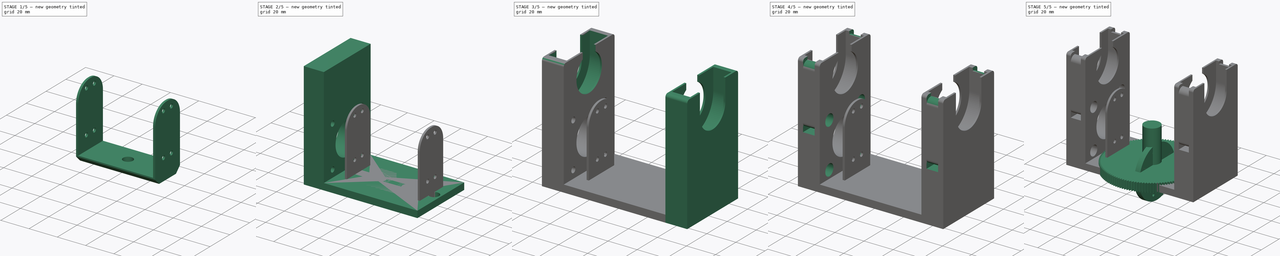
[diagram: build sequence overview — one tinted view per stage of 5, left to right]
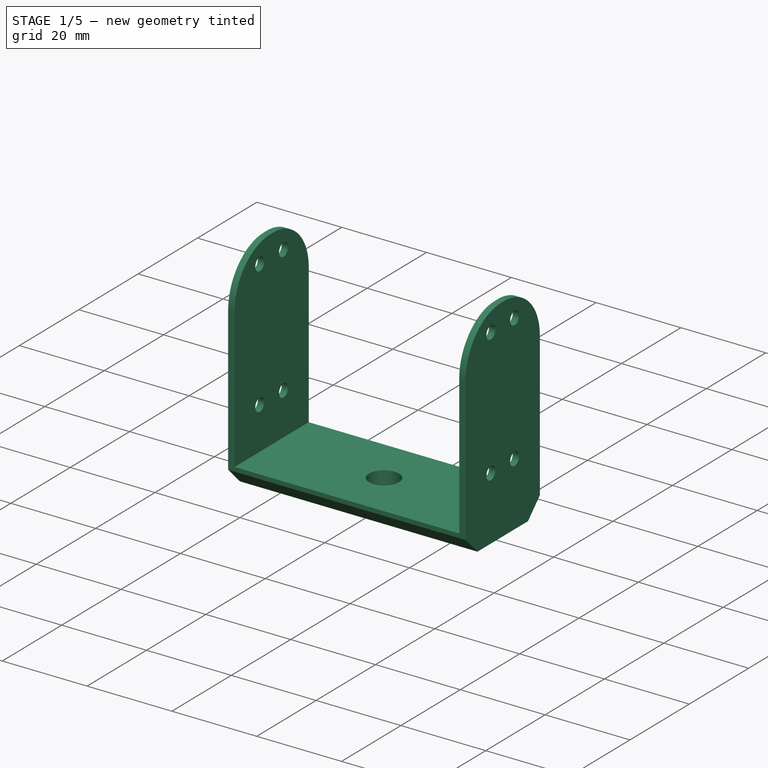
[diagram: stage 1 of 5 — iso view after this stage's code; geometry added in this stage tinted green]
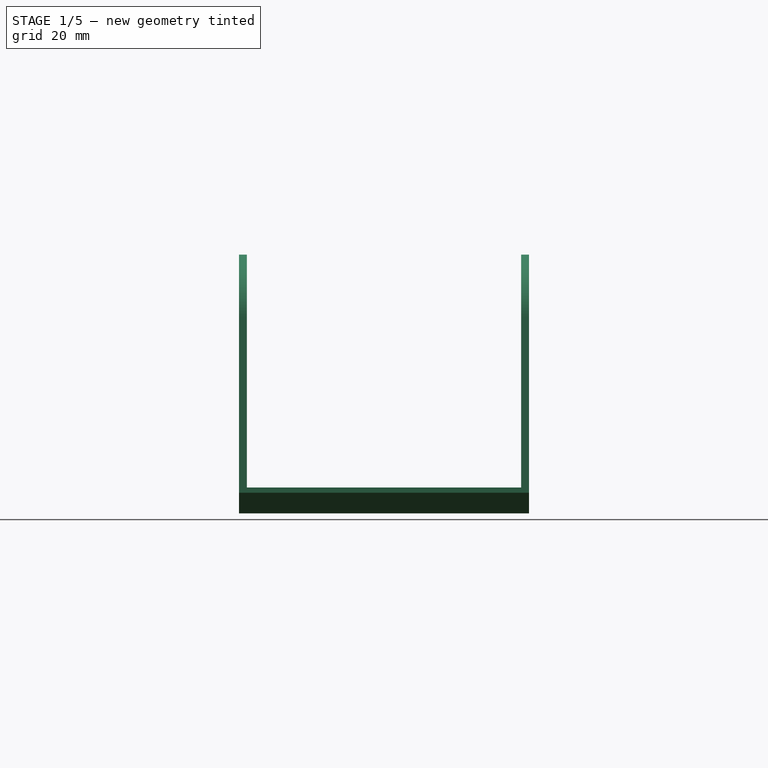
[diagram: stage 1 of 5 — front view after this stage's code; geometry added in this stage tinted green]
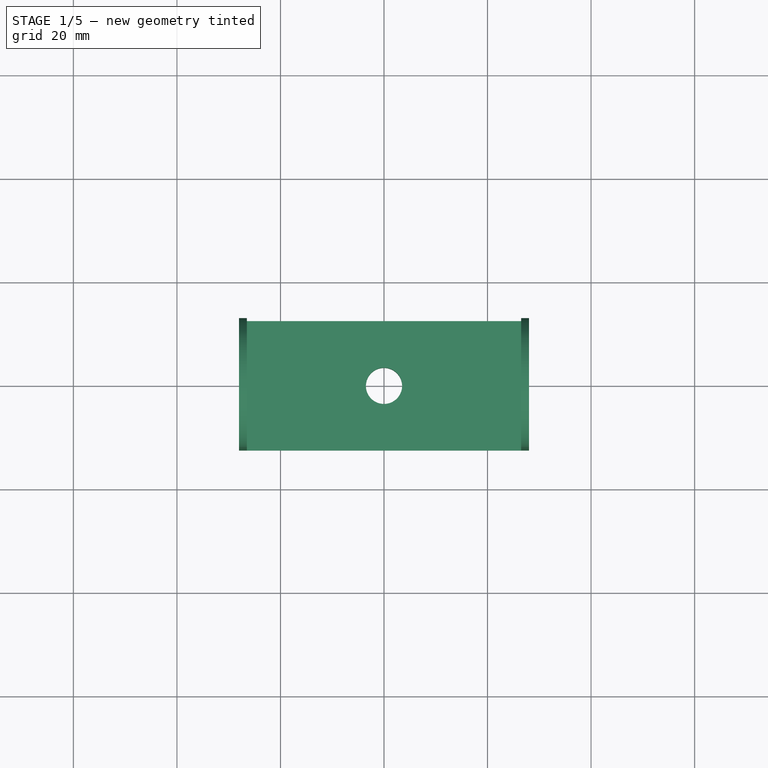
[diagram: stage 1 of 5 — top view after this stage's code; geometry added in this stage tinted green]
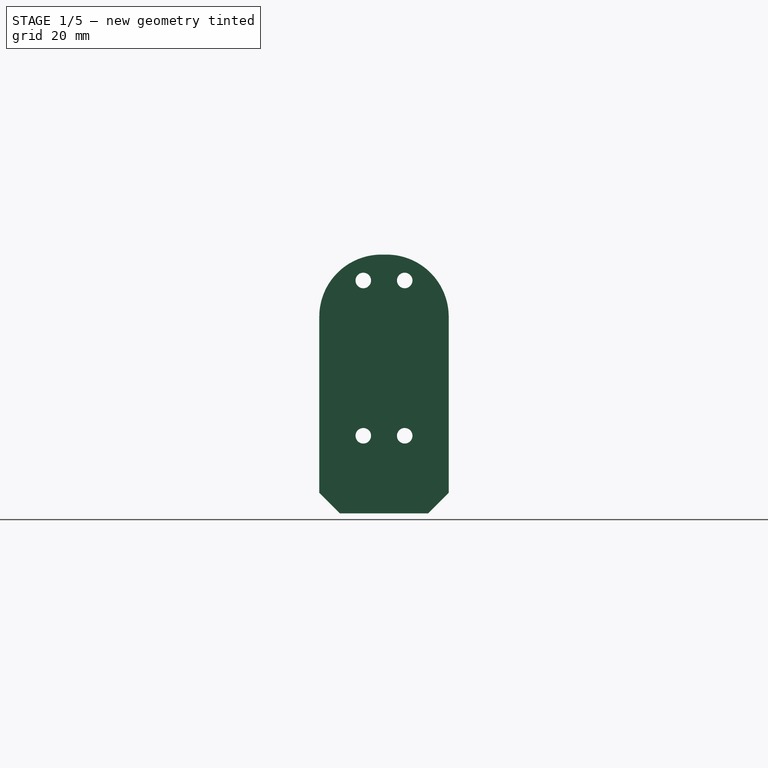
[diagram: stage 1 of 5 — right view after this stage's code; geometry added in this stage tinted green]
FCSTD DOCUMENT  (FreeCAD 0.20R29603 (Git))
Label: tilt_struct
License: All rights reserved
LicenseURL: http://en.wikipedia.org/wiki/All_rights_reserved
objects: Sketcher::SketchObject×21, PartDesign::Pocket×12, PartDesign::Pad×9, PartDesign::Body×5, PartDesign::Mirrored×4, PartDesign::Fillet×4, Part::Part2DObjectPython×2, PartDesign::Chamfer×2, PartDesign::Hole×1, PartDesign::Groove×1
note: 90 computed .brp shape members not serialized (recipe doc carries the construction recipe); baked Part::Feature solids carry a one-line shape summary decoded from their .brp

FEATURE [Sketcher::SketchObject] Sketch008
  FullyConstrained = true
  MapMode = 5
  Support = -> [XY_Plane001]
  sketch-geometry (5):
    g0: LineSegment StartX=-26.5 StartY=12.5 StartZ=0 EndX=-26.5 EndY=-12.5 EndZ=0
    g1: LineSegment StartX=-26.5 StartY=-12.5 StartZ=0 EndX=26.5 EndY=-12.5 EndZ=0
    g2: LineSegment StartX=26.5 StartY=-12.5 StartZ=0 EndX=26.5 EndY=12.5 EndZ=0
    g3: LineSegment StartX=26.5 StartY=12.5 StartZ=0 EndX=-26.5 EndY=12.5 EndZ=0
    g4: GeomPoint X=0 Y=0 Z=0
  constraints (12):
    c: Coincident(g0,g1)
    c: Coincident(g1,g2)
    c: Coincident(g2,g3)
    c: Coincident(g3,g0)
    c: Horizontal(g1)
    c: Horizontal(g3)
    c: Vertical(g0)
    c: Vertical(g2)
    c: Symmetric(g1,g0,g4)
    c: Coincident(g4,g-1)
    c: DistanceX(g3,g3) = 53
    c: DistanceY(g2,g2) = 25
FEATURE [PartDesign::Pad] Pad002
  Direction = (0,0,1)
  Length = 5
  Length2 = 10
  Profile = -> Sketch008
  ReferenceAxis = -> Sketch008 [N_Axis]
  Type = 0
FEATURE [Sketcher::SketchObject] Sketch009
  FullyConstrained = true
  MapMode = 5
  Placement = pos=(-26.5,0,0) rot=(0.57735,-0.57735,-0.57735;2.0944rad)
  Support = -> [Pad002]
  sketch-geometry (5):
    g0: LineSegment StartX=-12.5 StartY=50 StartZ=0 EndX=-12.5 EndY=0 EndZ=0
    g1: LineSegment StartX=-12.5 StartY=0 StartZ=0 EndX=12.5 EndY=0 EndZ=0
    g2: LineSegment StartX=12.5 StartY=0 StartZ=0 EndX=12.5 EndY=50 EndZ=0
    g3: LineSegment StartX=12.5 StartY=50 StartZ=0 EndX=-12.5 EndY=50 EndZ=0
    g4: GeomPoint X=0 Y=25 Z=0
  constraints (13):
    c: Coincident(g0,g1)
    c: Coincident(g1,g2)
    c: Coincident(g2,g3)
    c: Coincident(g3,g0)
    c: Horizontal(g1)
    c: Horizontal(g3)
    c: Vertical(g0)
    c: Vertical(g2)
    c: Symmetric(g1,g0,g4)
    c: PointOnObject(g4,g-2)
    c: DistanceX(g1,g1) = 25
    c: DistanceY(g2,g2) = 50
    c: PointOnObject(g-1,g1)
FEATURE [PartDesign::Pad] Pad003  label="Pad003-sideWall"
  BaseFeature = -> Pad002
  Direction = (-1,0,0)
  Length = 1.5
  Length2 = 10
  Profile = -> Sketch009
  ReferenceAxis = -> Sketch009 [N_Axis]
  Type = 0
FEATURE [Sketcher::SketchObject] Sketch018
  FullyConstrained = true
  MapMode = 5
  Placement = pos=(-28,0,0) rot=(0.57735,-0.57735,-0.57735;2.0944rad)
  Support = -> [Pad003]
  sketch-geometry (9):
    g0: LineSegment StartX=-4 StartY=45 StartZ=0 EndX=-4 EndY=15 EndZ=0
    g1: LineSegment StartX=-4 StartY=15 StartZ=0 EndX=4 EndY=15 EndZ=0
    g2: LineSegment StartX=4 StartY=15 StartZ=0 EndX=4 EndY=45 EndZ=0
    g3: LineSegment StartX=4 StartY=45 StartZ=0 EndX=-4 EndY=45 EndZ=0
    g4: GeomPoint X=0 Y=30 Z=0
    g5: Circle CenterX=-4 CenterY=45 CenterZ=0 NormalX=0 NormalY=0 NormalZ=1 AngleXU=0 Radius=1.5
    g6: Circle CenterX=4 CenterY=45 CenterZ=0 NormalX=0 NormalY=0 NormalZ=1 AngleXU=0 Radius=1.5
    g7: Circle CenterX=4 CenterY=15 CenterZ=0 NormalX=0 NormalY=0 NormalZ=1 AngleXU=0 Radius=1.5
    g8: Circle CenterX=-4 CenterY=15 CenterZ=0 NormalX=0 NormalY=0 NormalZ=1 AngleXU=0 Radius=1.5
  constraints (21):
    c: Coincident(g0,g1)
    c: Coincident(g1,g2)
    c: Coincident(g2,g3)
    c: Coincident(g3,g0)
    c: Horizontal(g1)
    c: Horizontal(g3)
    c: Vertical(g0)
    c: Vertical(g2)
    c: Symmetric(g1,g0,g4)
    c: PointOnObject(g4,g-2)
    c: DistanceX(g3,g3) = 8
    c: DistanceY(g-1,g4) = 30
    c: Coincident(g5,g0)
    c: Coincident(g6,g2)
    c: Coincident(g7,g1)
    c: Coincident(g8,g0)
    c: Equal(g5,g6)
    c: Equal(g6,g7)
    c: Equal(g7,g8)
    c: Diameter(g6) = 3
    c: DistanceY(g2,g2) = 30
FEATURE [PartDesign::Pocket] Pocket005
  BaseFeature = -> Pad003
  Direction = (1,0,0)
  Length = 5
  Length2 = 5
  Profile = -> Sketch018
  ReferenceAxis = -> Sketch018 [N_Axis]
  Type = 0
FEATURE [Sketcher::SketchObject] Sketch020
  FullyConstrained = true
  MapMode = 5
  Placement = pos=(0,0,6.5) rot=(0,0,1;0rad)
  Support = -> [Pocket006]
  sketch-geometry (1):
    g0: Circle CenterX=0 CenterY=0 CenterZ=0 NormalX=0 NormalY=0 NormalZ=1 AngleXU=0 Radius=6.25
  constraints (2):
    c: Coincident(g0,g-1)
    c: Diameter(g0) = 12.5
FEATURE [PartDesign::Fillet] Fillet
  Base = -> Pocket005 [Edge6,Edge18]
  BaseFeature = -> Pocket005
  Radius = 12
  SupportTransform = false
  UseAllEdges = false
FEATURE [PartDesign::Mirrored] Mirrored003
  BaseFeature = -> Fillet
  MirrorPlane = -> YZ_Plane001
  Originals = -> [Pad003,Pocket005,Fillet]
FEATURE [Sketcher::SketchObject] Sketch022
  FullyConstrained = true
  MapMode = 5
  Placement = pos=(0,0,5) rot=(0,0,1;0rad)
  Support = -> [Mirrored003]
  sketch-geometry (1):
    g0: Circle CenterX=0 CenterY=0 CenterZ=0 NormalX=0 NormalY=0 NormalZ=1 AngleXU=0 Radius=3.5
  constraints (2):
    c: Coincident(g0,g-1)
    c: Diameter(g0) = 7
FEATURE [PartDesign::Pocket] Pocket007
  BaseFeature = -> Mirrored003
  Direction = (0,0,-1)
  Length = 6
  Length2 = 5
  Profile = -> Sketch022
  ReferenceAxis = -> Sketch022 [N_Axis]
  Type = 0
FEATURE [PartDesign::Body] Body
  Group = -> [Sketch,Pad,Sketch001,Hole,Mirrored,Sketch002,Pad001,Sketch013,Pocket,Sketch014,Pocket002,Sketch015,Pocket003,Sketch016,Groove,Sketch017,Pocket004,Sketch026,Pocket009,Fillet001,Mirrored004,Sketch027,Pocket010,Sketch028,Pocket011,Fillet002,Sketch029,Pocket012,Fillet003,Mirrored005]
  Origin = -> Origin
  Tip = -> Mirrored005
FEATURE [PartDesign::Chamfer] Chamfer
  Angle = 45
  Base = -> Pocket007 [Edge5,Edge28]
  BaseFeature = -> Pocket007
  ChamferType = 0
  FlipDirection = false
  Size = 4
  Size2 = 1
  SupportTransform = false
  UseAllEdges = false
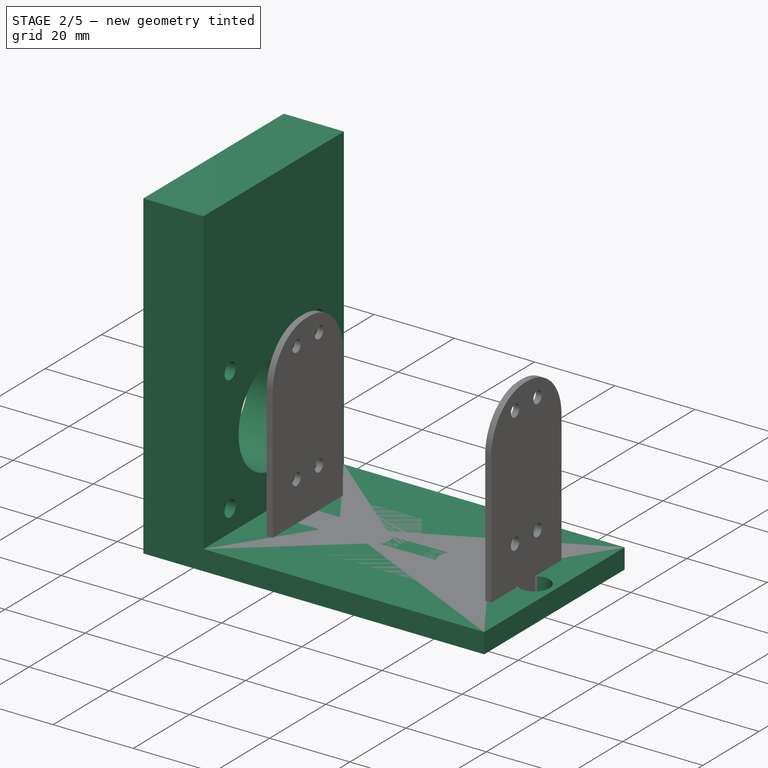
[diagram: stage 2 of 5 — iso view after this stage's code; geometry added in this stage tinted green]
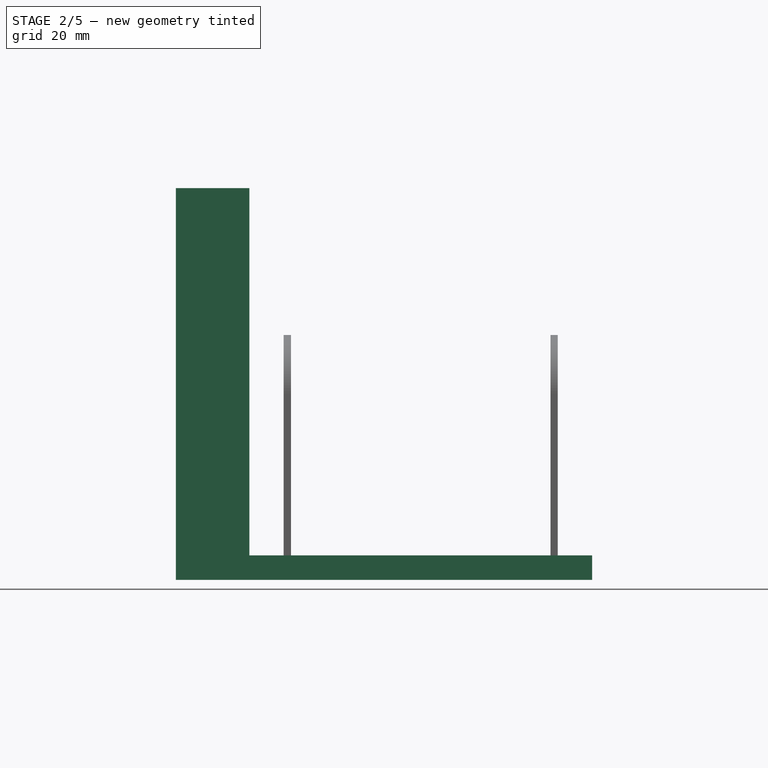
[diagram: stage 2 of 5 — front view after this stage's code; geometry added in this stage tinted green]
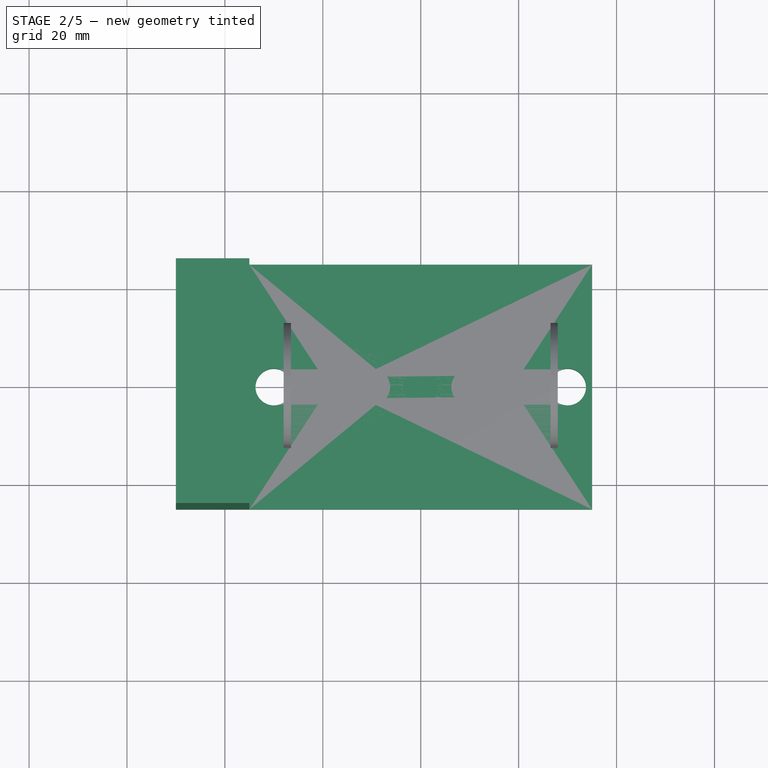
[diagram: stage 2 of 5 — top view after this stage's code; geometry added in this stage tinted green]
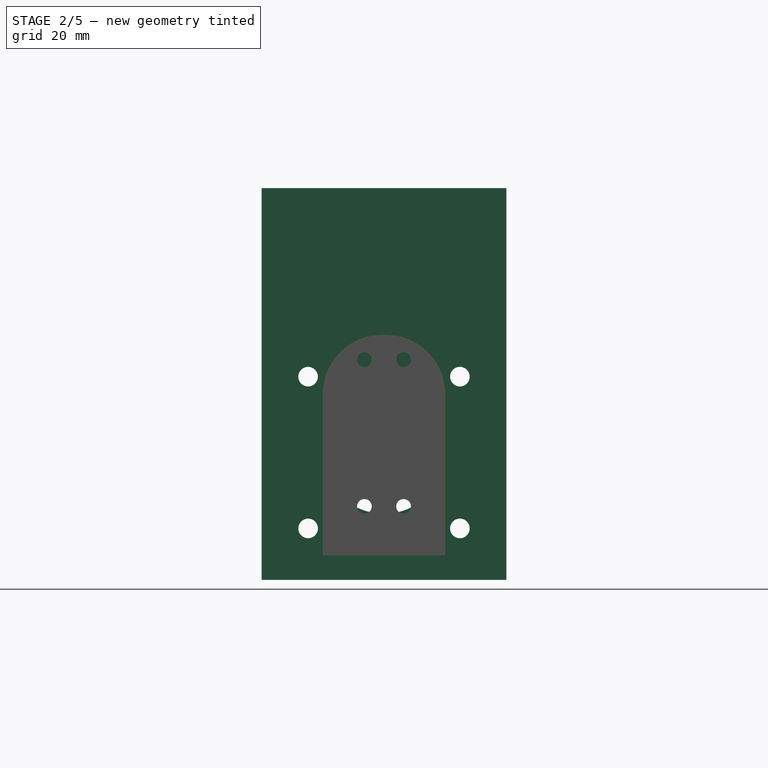
[diagram: stage 2 of 5 — right view after this stage's code; geometry added in this stage tinted green]
FEATURE [Sketcher::SketchObject] Sketch
  FullyConstrained = true
  MapMode = 5
  Support = -> [XY_Plane]
  sketch-geometry (5):
    g0: LineSegment StartX=-35 StartY=25 StartZ=0 EndX=-35 EndY=-25 EndZ=0
    g1: LineSegment StartX=-35 StartY=-25 StartZ=0 EndX=35 EndY=-25 EndZ=0
    g2: LineSegment StartX=35 StartY=-25 StartZ=0 EndX=35 EndY=25 EndZ=0
    g3: LineSegment StartX=35 StartY=25 StartZ=0 EndX=-35 EndY=25 EndZ=0
    g4: GeomPoint X=0 Y=0 Z=0
  constraints (12):
    c: Coincident(g0,g1)
    c: Coincident(g1,g2)
    c: Coincident(g2,g3)
    c: Coincident(g3,g0)
    c: Horizontal(g1)
    c: Horizontal(g3)
    c: Vertical(g0)
    c: Vertical(g2)
    c: Symmetric(g1,g0,g4)
    c: Coincident(g4,g-1)
    c: DistanceX(g3,g3) = 70
    c: DistanceY(g2,g2) = 50
FEATURE [PartDesign::Pad] Pad  label="Pad-base-connect"
  Direction = (0,0,1)
  Length = 5
  Length2 = 10
  Profile = -> Sketch
  ReferenceAxis = -> Sketch [N_Axis]
  Type = 0
FEATURE [Sketcher::SketchObject] Sketch001
  FullyConstrained = true
  MapMode = 5
  Placement = pos=(0,0,5) rot=(0,0,1;0rad)
  Support = -> [Pad]
  sketch-geometry (3):
    g0: Circle CenterX=-30 CenterY=0 CenterZ=0 NormalX=0 NormalY=0 NormalZ=1 AngleXU=0 Radius=3.75
    g1: Circle CenterX=-20 CenterY=0 CenterZ=0 NormalX=0 NormalY=0 NormalZ=1 AngleXU=0 Radius=3.75
    g2: Circle CenterX=-10 CenterY=0 CenterZ=0 NormalX=0 NormalY=0 NormalZ=1 AngleXU=0 Radius=3.75
  constraints (9):
    c: DistanceX(g0,g-1) = 30
    c: PointOnObject(g0,g-1)
    c: DistanceX(g0,g1) = 10
    c: PointOnObject(g1,g-1)
    c: Equal(g1,g0)
    c: Diameter(g0) = 7.5
    c: PointOnObject(g2,g-1)
    c: DistanceX(g1,g2) = 10
    c: Equal(g2,g0)
FEATURE [PartDesign::Hole] Hole  label="Hole-base-connect"
  BaseFeature = -> Pad
  CustomThreadClearance = 0
  Depth = 5
  DepthType = 0
  Diameter = 7.5
  DrillForDepth = false
  DrillPoint = 1
  DrillPointAngle = 118
  HoleCutCountersinkAngle = 90
  HoleCutCustomValues = false
  HoleCutDepth = 0
  HoleCutDiameter = 6.1
  HoleCutType = 0
  ModelThread = false
  Profile = -> Sketch001
  Tapered = false
  TaperedAngle = 90
  ThreadClass = 0
  ThreadDepth = 5
  ThreadDepthType = 0
  ThreadDirection = 0
  ThreadFit = 0
  ThreadSize = 0
  ThreadType = 0
  Threaded = false
  UseCustomThreadClearance = false
FEATURE [PartDesign::Mirrored] Mirrored  label="Mirrored-base-connect"
  BaseFeature = -> Hole
  MirrorPlane = -> Sketch001 [V_Axis]
  Originals = -> [Hole]
FEATURE [Sketcher::SketchObject] Sketch002
  FullyConstrained = true
  MapMode = 5
  Placement = pos=(-35,0,0) rot=(0.57735,-0.57735,-0.57735;2.0944rad)
  Support = -> [Mirrored]
  sketch-geometry (6):
    g0: LineSegment StartX=-25 StartY=80 StartZ=0 EndX=-25 EndY=0 EndZ=0
    g1: LineSegment StartX=-25 StartY=0 StartZ=0 EndX=25 EndY=0 EndZ=0
    g2: LineSegment StartX=25 StartY=0 StartZ=0 EndX=25 EndY=80 EndZ=0
    g3: LineSegment StartX=25 StartY=80 StartZ=0 EndX=-25 EndY=80 EndZ=0
    g4: GeomPoint X=0 Y=40 Z=0
    g5: GeomPoint X=0 Y=0 Z=0
  constraints (14):
    c: Coincident(g0,g1)
    c: Coincident(g1,g2)
    c: Coincident(g2,g3)
    c: Coincident(g3,g0)
    c: Horizontal(g1)
    c: Horizontal(g3)
    c: Vertical(g0)
    c: Vertical(g2)
    c: Symmetric(g1,g0,g4)
    c: PointOnObject(g4,g-2)
    c: DistanceX(g1,g1) = 50
    c: PointOnObject(g5,g1)
    c: Coincident(g5,g-1)
    c: DistanceY(g2,g2) = 80
FEATURE [PartDesign::Pad] Pad001  label="Pad001-side"
  BaseFeature = -> Mirrored
  Direction = (-1,0,0)
  Length = 15
  Length2 = 10
  Profile = -> Sketch002
  ReferenceAxis = -> Sketch002 [N_Axis]
  Type = 0
FEATURE [Sketcher::SketchObject] Sketch013
  FullyConstrained = true
  MapMode = 5
  Placement = pos=(-50,0,0) rot=(0.57735,-0.57735,-0.57735;2.0944rad)
  Support = -> [Pad001]
  sketch-geometry (10):
    g0: LineSegment StartX=-15.5 StartY=41.5 StartZ=0 EndX=-15.5 EndY=10.5 EndZ=0
    g1: LineSegment StartX=-15.5 StartY=10.5 StartZ=0 EndX=15.5 EndY=10.5 EndZ=0
    g2: LineSegment StartX=15.5 StartY=10.5 StartZ=0 EndX=15.5 EndY=41.5 EndZ=0
    g3: LineSegment StartX=15.5 StartY=41.5 StartZ=0 EndX=-15.5 EndY=41.5 EndZ=0
    g4: GeomPoint X=0 Y=26 Z=0
    g5: Circle CenterX=-15.5 CenterY=41.5 CenterZ=0 NormalX=0 NormalY=0 NormalZ=1 AngleXU=0 Radius=2
    g6: Circle CenterX=15.5 CenterY=41.5 CenterZ=0 NormalX=0 NormalY=0 NormalZ=1 AngleXU=0 Radius=2
    g7: Circle CenterX=15.5 CenterY=10.5 CenterZ=0 NormalX=0 NormalY=0 NormalZ=1 AngleXU=0 Radius=2
    g8: Circle CenterX=-15.5 CenterY=10.5 CenterZ=0 NormalX=0 NormalY=0 NormalZ=1 AngleXU=0 Radius=2
    g9: Circle CenterX=0 CenterY=26 CenterZ=0 NormalX=0 NormalY=0 NormalZ=1 AngleXU=0 Radius=12.5
  constraints (23):
    c: Coincident(g0,g1)
    c: Coincident(g1,g2)
    c: Coincident(g2,g3)
    c: Coincident(g3,g0)
    c: Horizontal(g1)
    c: Horizontal(g3)
    c: Vertical(g0)
    c: Vertical(g2)
    c: Symmetric(g1,g0,g4)
    c: PointOnObject(g4,g-2)
    c: Equal(g1,g2)
    c: DistanceX(g1,g1) = 31
    c: DistanceY(g-1,g4) = 26
    c: Coincident(g6,g2)
    c: Coincident(g7,g1)
    c: Coincident(g8,g0)
    c: Equal(g5,g6)
    c: Equal(g6,g7)
    c: Equal(g7,g8)
    c: Diameter(g6) = 4
    c: Coincident(g9,g4)
    c: Diameter(g9) = 25
    c: Coincident(g5,g0)
FEATURE [PartDesign::Pocket] Pocket  label="Pocket-motor-shaft"
  BaseFeature = -> Pad001
  Direction = (1,0,0)
  Length = 25
  Length2 = 5
  Profile = -> Sketch013
  ReferenceAxis = -> Sketch013 [N_Axis]
  Type = 0
FEATURE [PartDesign::Chamfer] Chamfer001
  Angle = 45
  Base = -> Chamfer [Edge33,Edge54]
  BaseFeature = -> Chamfer
  ChamferType = 0
  FlipDirection = false
  Size = 3
  Size2 = 1
  SupportTransform = false
  UseAllEdges = false
FEATURE [PartDesign::Body] Body001  label="Body001-camera-mount"
  Group = -> [Sketch008,Pad002,Sketch009,Pad003,Sketch018,Pocket005,Fillet,Mirrored003,Sketch022,Pocket007,Chamfer,Chamfer001]
  Origin = -> Origin001
  Placement = pos=(0,0,35) rot=(0,0,1;0rad)
  Tip = -> Chamfer001
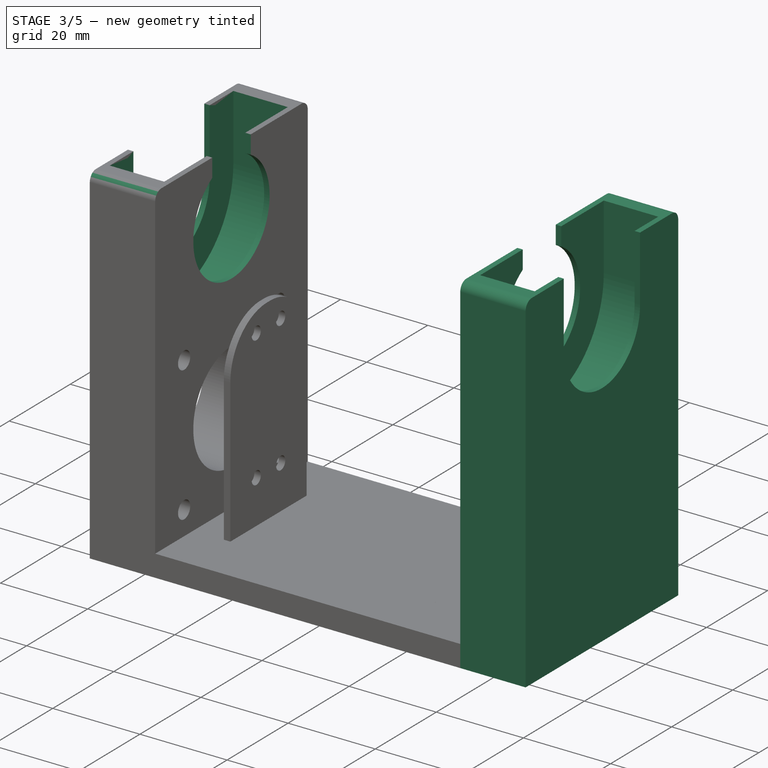
[diagram: stage 3 of 5 — iso view after this stage's code; geometry added in this stage tinted green]
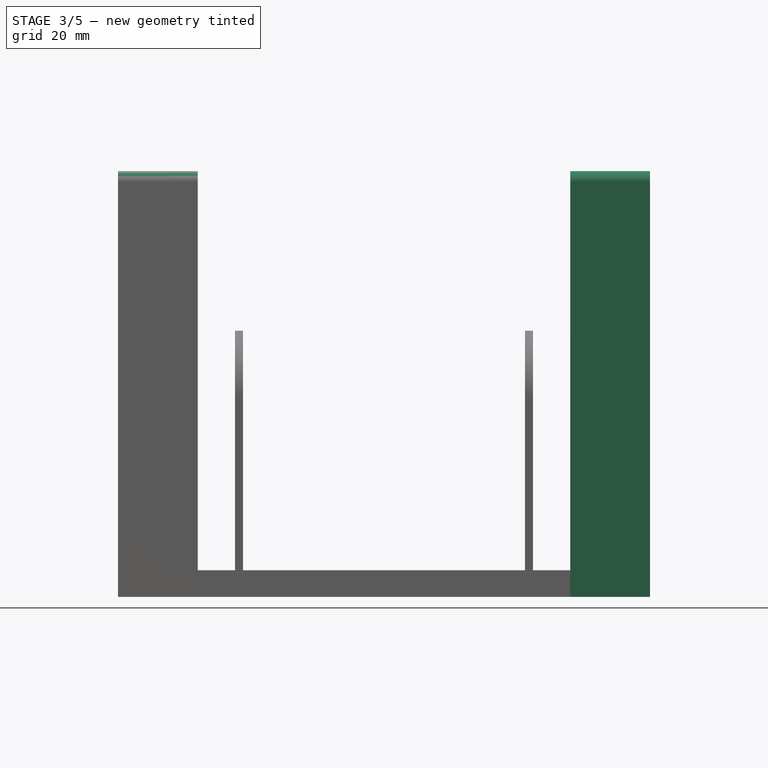
[diagram: stage 3 of 5 — front view after this stage's code; geometry added in this stage tinted green]
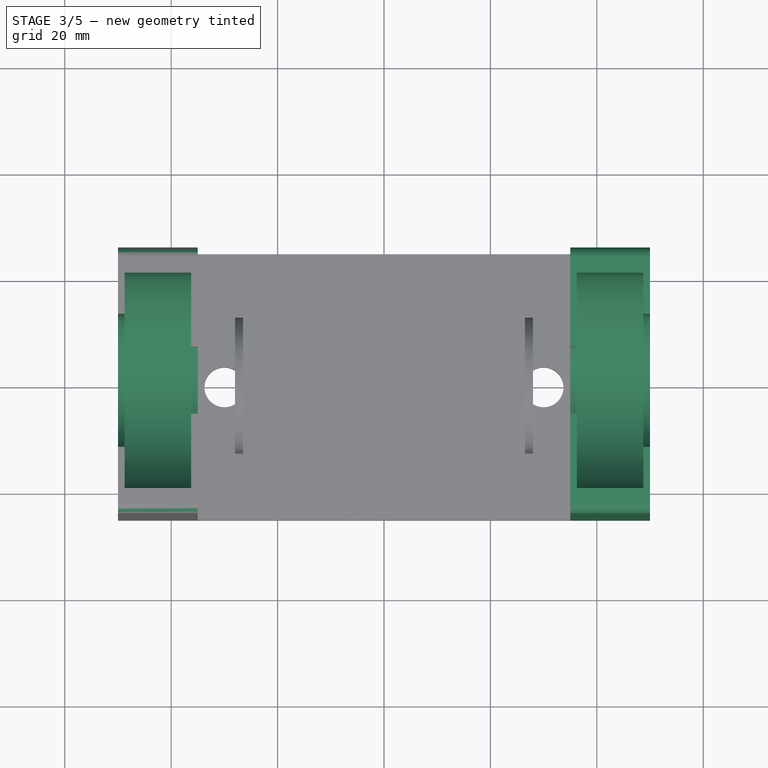
[diagram: stage 3 of 5 — top view after this stage's code; geometry added in this stage tinted green]
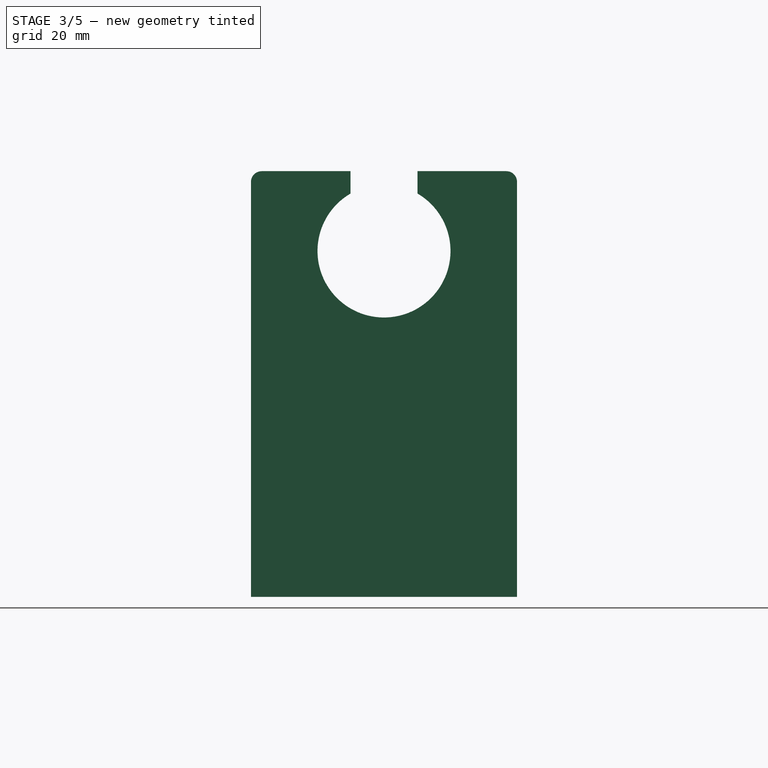
[diagram: stage 3 of 5 — right view after this stage's code; geometry added in this stage tinted green]
FEATURE [Sketcher::SketchObject] Sketch014
  FullyConstrained = true
  MapMode = 5
  Placement = pos=(0,0,80) rot=(0,0,1;0rad)
  Support = -> [Pocket]
  sketch-geometry (5):
    g0: LineSegment StartX=-48.75 StartY=20.25 StartZ=0 EndX=-48.75 EndY=-20.25 EndZ=0
    g1: LineSegment StartX=-48.75 StartY=-20.25 StartZ=0 EndX=-36.25 EndY=-20.25 EndZ=0
    g2: LineSegment StartX=-36.25 StartY=-20.25 StartZ=0 EndX=-36.25 EndY=20.25 EndZ=0
    g3: LineSegment StartX=-36.25 StartY=20.25 StartZ=0 EndX=-48.75 EndY=20.25 EndZ=0
    g4: GeomPoint X=-42.5 Y=0 Z=0
  constraints (13):
    c: Coincident(g0,g1)
    c: Coincident(g1,g2)
    c: Coincident(g2,g3)
    c: Coincident(g3,g0)
    c: Horizontal(g1)
    c: Horizontal(g3)
    c: Vertical(g0)
    c: Vertical(g2)
    c: Symmetric(g1,g0,g4)
    c: PointOnObject(g4,g-1)
    c: DistanceX(g3,g3) = 12.5
    c: DistanceY(g2,g2) = 40.5
    c: DistanceX(g4,g-1) = 42.5
FEATURE [PartDesign::Pocket] Pocket002  label="Pocket002-bearing-groove"
  BaseFeature = -> Pocket
  Direction = (0,0,-1)
  Length = 15
  Length2 = 5
  Profile = -> Sketch014
  ReferenceAxis = -> Sketch014 [N_Axis]
  Type = 0
FEATURE [Sketcher::SketchObject] Sketch015
  FullyConstrained = true
  MapMode = 5
  Placement = pos=(-50,0,0) rot=(0.57735,-0.57735,-0.57735;2.0944rad)
  Support = -> [Pocket002]
  sketch-geometry (1):
    g0: Circle CenterX=0 CenterY=65 CenterZ=0 NormalX=0 NormalY=0 NormalZ=1 AngleXU=0 Radius=12.5
  constraints (3):
    c: PointOnObject(g0,g-2)
    c: Diameter(g0) = 25
    c: DistanceY(g-1,g0) = 65
FEATURE [PartDesign::Pocket] Pocket003  label="Pocket003-bearing"
  BaseFeature = -> Pocket002
  Direction = (1,0,0)
  Length = 23
  Length2 = 5
  Profile = -> Sketch015
  ReferenceAxis = -> Sketch015 [N_Axis]
  Type = 0
FEATURE [Sketcher::SketchObject] Sketch016
  FullyConstrained = true
  MapMode = 5
  Placement = pos=(0,0,65) rot=(0,0,1;0rad)
  Support = -> [Pocket003]
  sketch-geometry (5):
    g0: LineSegment StartX=-48.75 StartY=20.25 StartZ=0 EndX=-48.75 EndY=0 EndZ=0
    g1: LineSegment StartX=-48.75 StartY=0 StartZ=0 EndX=-36.25 EndY=0 EndZ=0
    g2: LineSegment StartX=-36.25 StartY=0 StartZ=0 EndX=-36.25 EndY=20.25 EndZ=0
    g3: LineSegment StartX=-36.25 StartY=20.25 StartZ=0 EndX=-48.75 EndY=20.25 EndZ=0
    g4: GeomPoint X=-42.5 Y=0 Z=0
  constraints (13):
    c: Coincident(g0,g1)
    c: Coincident(g1,g2)
    c: Coincident(g2,g3)
    c: Coincident(g3,g0)
    c: Horizontal(g1)
    c: Horizontal(g3)
    c: Vertical(g0)
    c: Vertical(g2)
    c: DistanceX(g1,g1) = 12.5
    c: DistanceY(g2,g2) = 20.25
    c: Symmetric(g1,g1,g4)
    c: PointOnObject(g4,g-1)
    c: DistanceX(g4,g-1) = 42.5
FEATURE [PartDesign::Groove] Groove  label="Groove-bearing-seat"
  Angle = 360
  Axis = (1,0,0)
  Base = (0,0,65)
  BaseFeature = -> Pocket003
  Profile = -> Sketch016
  ReferenceAxis = -> Sketch016 [H_Axis]
  Reversed = true
FEATURE [Sketcher::SketchObject] Sketch017
  FullyConstrained = true
  MapMode = 5
  Placement = pos=(0,0,80) rot=(0,0,1;0rad)
  Support = -> [Groove]
  sketch-geometry (5):
    g0: LineSegment StartX=-57.5 StartY=12.5 StartZ=0 EndX=-57.5 EndY=-12.5 EndZ=0
    g1: LineSegment StartX=-57.5 StartY=-12.5 StartZ=0 EndX=-42.5 EndY=-12.5 EndZ=0
    g2: LineSegment StartX=-42.5 StartY=-12.5 StartZ=0 EndX=-42.5 EndY=12.5 EndZ=0
    g3: LineSegment StartX=-42.5 StartY=12.5 StartZ=0 EndX=-57.5 EndY=12.5 EndZ=0
    g4: GeomPoint X=-50 Y=0 Z=0
  constraints (13):
    c: Coincident(g0,g1)
    c: Coincident(g1,g2)
    c: Coincident(g2,g3)
    c: Coincident(g3,g0)
    c: Horizontal(g1)
    c: Horizontal(g3)
    c: Vertical(g0)
    c: Vertical(g2)
    c: Symmetric(g1,g0,g4)
    c: PointOnObject(g4,g-1)
    c: DistanceY(g0,g0) = 25
    c: DistanceX(g4,g-1) = 50
    c: DistanceX(g3,g3) = 15
FEATURE [PartDesign::Pocket] Pocket004  label="Pocket004-baring-coupler"
  BaseFeature = -> Groove
  Direction = (0,0,-1)
  Length = 15
  Length2 = 5
  Profile = -> Sketch017
  ReferenceAxis = -> Sketch017 [N_Axis]
  Type = 0
FEATURE [PartDesign::Body] Body002  label="Body002-gear"
  Group = -> [InvoluteGear,Pad005,Sketch020,Sketch021,Pocket006,Pad010]
  Origin = -> Origin002
  Placement = pos=(-28,0,65) rot=(0,-1,0;1.5708rad)
  Tip = -> Pad010
FEATURE [Sketcher::SketchObject] Sketch026
  FullyConstrained = true
  MapMode = 5
  Placement = pos=(0,0,80) rot=(0,0,1;0rad)
  Support = -> [Pocket004]
  sketch-geometry (5):
    g0: LineSegment StartX=-37.5 StartY=6.3 StartZ=0 EndX=-37.5 EndY=-6.3 EndZ=0
    g1: LineSegment StartX=-37.5 StartY=-6.3 StartZ=0 EndX=-32.5 EndY=-6.3 EndZ=0
    g2: LineSegment StartX=-32.5 StartY=-6.3 StartZ=0 EndX=-32.5 EndY=6.3 EndZ=0
    g3: LineSegment StartX=-32.5 StartY=6.3 StartZ=0 EndX=-37.5 EndY=6.3 EndZ=0
    g4: GeomPoint X=-35 Y=0 Z=0
  constraints (13):
    c: Coincident(g0,g1)
    c: Coincident(g1,g2)
    c: Coincident(g2,g3)
    c: Coincident(g3,g0)
    c: Horizontal(g1)
    c: Horizontal(g3)
    c: Vertical(g0)
    c: Vertical(g2)
    c: Symmetric(g1,g0,g4)
    c: PointOnObject(g4,g-1)
    c: DistanceY(g0,g0) = 12.6
    c: DistanceX(g4,g-1) = 35
    c: DistanceX(g3,g3) = 5
FEATURE [PartDesign::Pocket] Pocket009  label="Pocket009-cam-mount-shaft"
  BaseFeature = -> Pocket004
  Direction = (0,0,-1)
  Length = 8
  Length2 = 5
  Profile = -> Sketch026
  ReferenceAxis = -> Sketch026 [N_Axis]
  Type = 0
FEATURE [PartDesign::Fillet] Fillet001  label="Fillet001-side"
  Base = -> Pocket009 [Edge8,Edge67]
  BaseFeature = -> Pocket009
  Radius = 2
  SupportTransform = false
  UseAllEdges = false
FEATURE [PartDesign::Mirrored] Mirrored004
  BaseFeature = -> Fillet001
  MirrorPlane = -> YZ_Plane
  Originals = -> [Pad001,Pocket002,Pocket003,Groove,Pocket004,Pocket009,Fillet001]
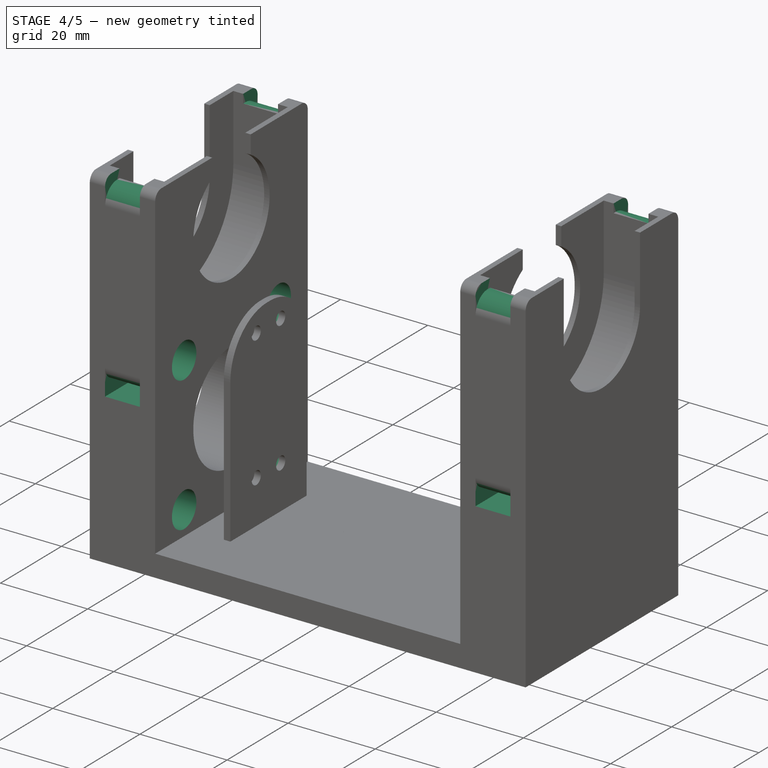
[diagram: stage 4 of 5 — iso view after this stage's code; geometry added in this stage tinted green]
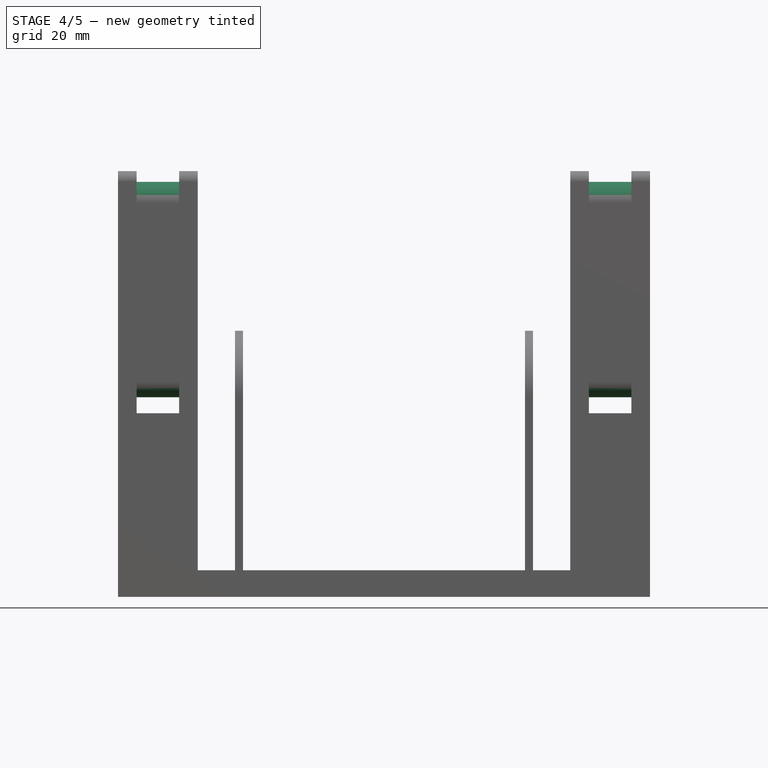
[diagram: stage 4 of 5 — front view after this stage's code; geometry added in this stage tinted green]
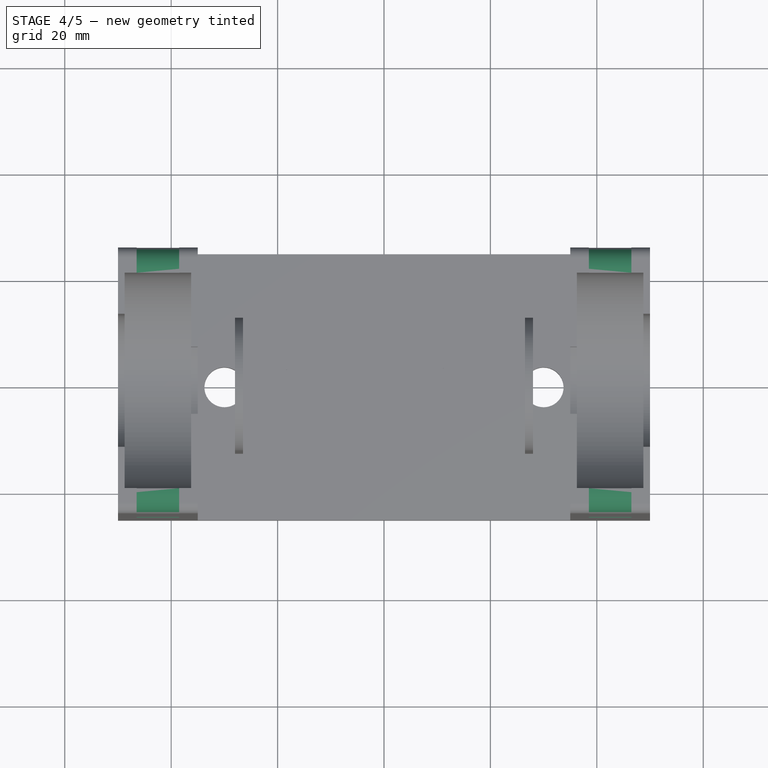
[diagram: stage 4 of 5 — top view after this stage's code; geometry added in this stage tinted green]
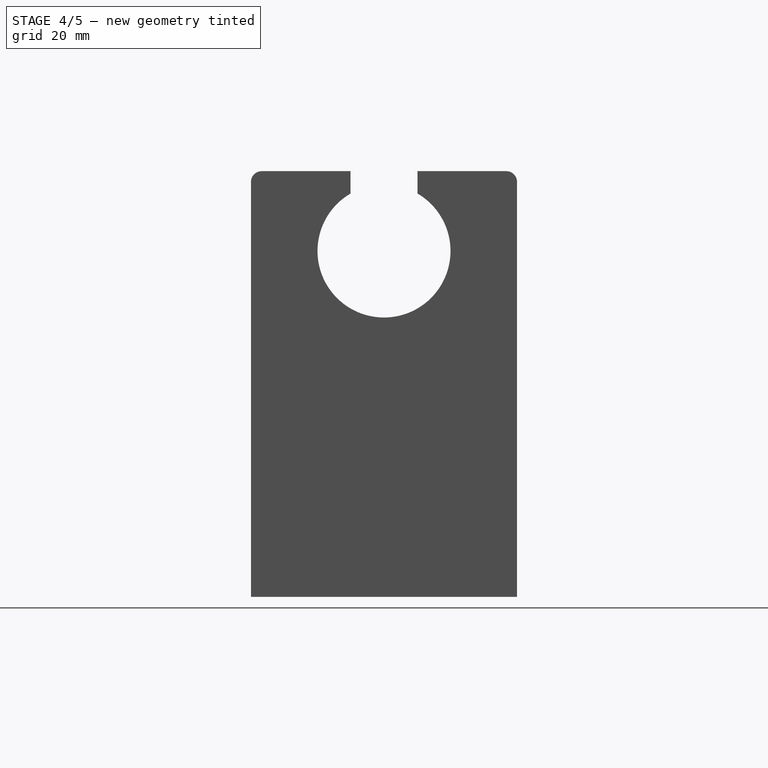
[diagram: stage 4 of 5 — right view after this stage's code; geometry added in this stage tinted green]
FEATURE [PartDesign::Body] Body004  label="Body004-pulley"
  Group = -> [InvoluteGear001,Pad011]
  Origin = -> Origin004
  Placement = pos=(-35,0,26) rot=(0,1,0;1.5708rad)
  Tip = -> Pad011
FEATURE [Sketcher::SketchObject] Sketch027
  FullyConstrained = true
  MapMode = 5
  Placement = pos=(-35,0,0) rot=(0.57735,0.57735,0.57735;2.0944rad)
  Support = -> [Pad001]
  sketch-geometry (9):
    g0: LineSegment StartX=-15.5 StartY=41.5 StartZ=0 EndX=-15.5 EndY=10.5 EndZ=0
    g1: LineSegment StartX=-15.5 StartY=10.5 StartZ=0 EndX=15.5 EndY=10.5 EndZ=0
    g2: LineSegment StartX=15.5 StartY=10.5 StartZ=0 EndX=15.5 EndY=41.5 EndZ=0
    g3: LineSegment StartX=15.5 StartY=41.5 StartZ=0 EndX=-15.5 EndY=41.5 EndZ=0
    g4: GeomPoint X=0 Y=26 Z=0
    g5: Circle CenterX=-15.5 CenterY=41.5 CenterZ=0 NormalX=0 NormalY=0 NormalZ=1 AngleXU=0 Radius=4
    g6: Circle CenterX=15.5 CenterY=41.5 CenterZ=0 NormalX=0 NormalY=0 NormalZ=1 AngleXU=0 Radius=4
    g7: Circle CenterX=15.5 CenterY=10.5 CenterZ=0 NormalX=0 NormalY=0 NormalZ=1 AngleXU=0 Radius=4
    g8: Circle CenterX=-15.5 CenterY=10.5 CenterZ=0 NormalX=0 NormalY=0 NormalZ=1 AngleXU=0 Radius=4
  constraints (21):
    c: Coincident(g0,g1)
    c: Coincident(g1,g2)
    c: Coincident(g2,g3)
    c: Coincident(g3,g0)
    c: Horizontal(g1)
    c: Horizontal(g3)
    c: Vertical(g0)
    c: Vertical(g2)
    c: Symmetric(g1,g0,g4)
    c: PointOnObject(g4,g-2)
    c: Equal(g1,g2)
    c: DistanceX(g1,g1) = 31
    c: DistanceY(g-1,g4) = 26
    c: Coincident(g6,g2)
    c: Coincident(g7,g1)
    c: Coincident(g8,g0)
    c: Equal(g5,g6)
    c: Equal(g6,g7)
    c: Equal(g7,g8)
    c: Diameter(g6) = 8
    c: Coincident(g5,g0)
FEATURE [PartDesign::Pocket] Pocket010  label="Pocket010-motor-fastener-headspace"
  BaseFeature = -> Mirrored004
  Direction = (-1,0,0)
  Length = 6
  Length2 = 5
  Profile = -> Sketch027
  ReferenceAxis = -> Sketch027 [N_Axis]
  Type = 0
FEATURE [Sketcher::SketchObject] Sketch028
  FullyConstrained = true
  MapMode = 5
  Placement = pos=(0,-25,0) rot=(1,0,0;1.5708rad)
  Support = -> [Pocket010]
  sketch-geometry (5):
    g0: LineSegment StartX=-46.5 StartY=37.5 StartZ=0 EndX=-46.5 EndY=34.5 EndZ=0
    g1: LineSegment StartX=-46.5 StartY=34.5 StartZ=0 EndX=-38.5 EndY=34.5 EndZ=0
    g2: LineSegment StartX=-38.5 StartY=34.5 StartZ=0 EndX=-38.5 EndY=37.5 EndZ=0
    g3: LineSegment StartX=-38.5 StartY=37.5 StartZ=0 EndX=-46.5 EndY=37.5 EndZ=0
    g4: GeomPoint X=-42.5 Y=36 Z=0
  constraints (13):
    c: Coincident(g0,g1)
    c: Coincident(g1,g2)
    c: Coincident(g2,g3)
    c: Coincident(g3,g0)
    c: Horizontal(g1)
    c: Horizontal(g3)
    c: Vertical(g0)
    c: Vertical(g2)
    c: Symmetric(g1,g0,g4)
    c: DistanceX(g1,g1) = 8
    c: DistanceY(g2,g2) = 3
    c: DistanceY(g-1,g4) = 36
    c: DistanceX(g4,g-1) = 42.5
FEATURE [PartDesign::Pocket] Pocket011  label="Pocket011-zip"
  BaseFeature = -> Pocket010
  Direction = (0,1,-2e-16)
  Length = 52
  Length2 = 5
  Profile = -> Sketch028
  ReferenceAxis = -> Sketch028 [N_Axis]
  Type = 0
FEATURE [PartDesign::Fillet] Fillet002  label="Fillet002-primary-zip"
  Base = -> Pocket011 [Edge72,Edge9]
  BaseFeature = -> Pocket011
  Radius = 3
  SupportTransform = false
  UseAllEdges = false
FEATURE [Sketcher::SketchObject] Sketch029
  FullyConstrained = true
  MapMode = 5
  Placement = pos=(0,0,80) rot=(0,0,1;0rad)
  Support = -> [Fillet001]
  sketch-geometry (5):
    g0: LineSegment StartX=-46.5 StartY=26 StartZ=0 EndX=-46.5 EndY=-26 EndZ=0
    g1: LineSegment StartX=-46.5 StartY=-26 StartZ=0 EndX=-38.5 EndY=-26 EndZ=0
    g2: LineSegment StartX=-38.5 StartY=-26 StartZ=0 EndX=-38.5 EndY=26 EndZ=0
    g3: LineSegment StartX=-38.5 StartY=26 StartZ=0 EndX=-46.5 EndY=26 EndZ=0
    g4: GeomPoint X=-42.5 Y=0 Z=0
  constraints (13):
    c: Coincident(g0,g1)
    c: Coincident(g1,g2)
    c: Coincident(g2,g3)
    c: Coincident(g3,g0)
    c: Horizontal(g1)
    c: Horizontal(g3)
    c: Vertical(g0)
    c: Vertical(g2)
    c: Symmetric(g1,g0,g4)
    c: PointOnObject(g4,g-1)
    c: DistanceX(g1,g1) = 8
    c: DistanceY(g0,g0) = 52
    c: DistanceX(g4,g-1) = 42.5
FEATURE [PartDesign::Pocket] Pocket012  label="Pocket012-top-zip"
  BaseFeature = -> Fillet002
  Direction = (0,0,-1)
  Length = 2
  Length2 = 5
  Profile = -> Sketch029
  ReferenceAxis = -> Sketch029 [N_Axis]
  Type = 0
FEATURE [PartDesign::Fillet] Fillet003  label="Fillet003-top-zip"
  Base = -> Pocket012 [Edge93,Edge9]
  BaseFeature = -> Pocket012
  Radius = 4
  SupportTransform = false
  UseAllEdges = false
FEATURE [PartDesign::Mirrored] Mirrored005  label="Mirrored005-zip"
  BaseFeature = -> Fillet003
  MirrorPlane = -> Sketch028 [V_Axis]
  Originals = -> [Pocket011,Fillet002,Pocket012,Fillet003]
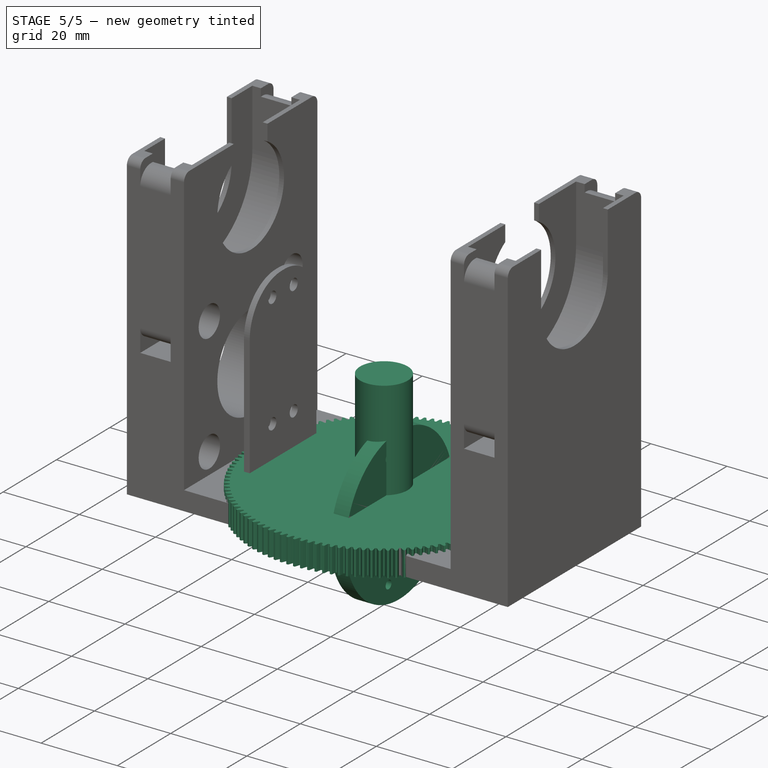
[diagram: stage 5 of 5 — iso view after this stage's code; geometry added in this stage tinted green]
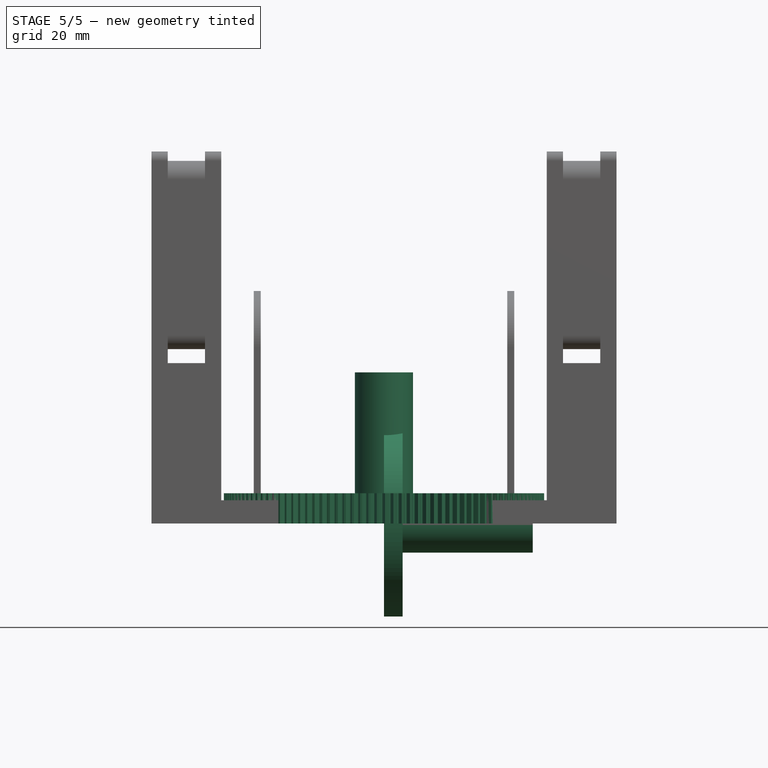
[diagram: stage 5 of 5 — front view after this stage's code; geometry added in this stage tinted green]
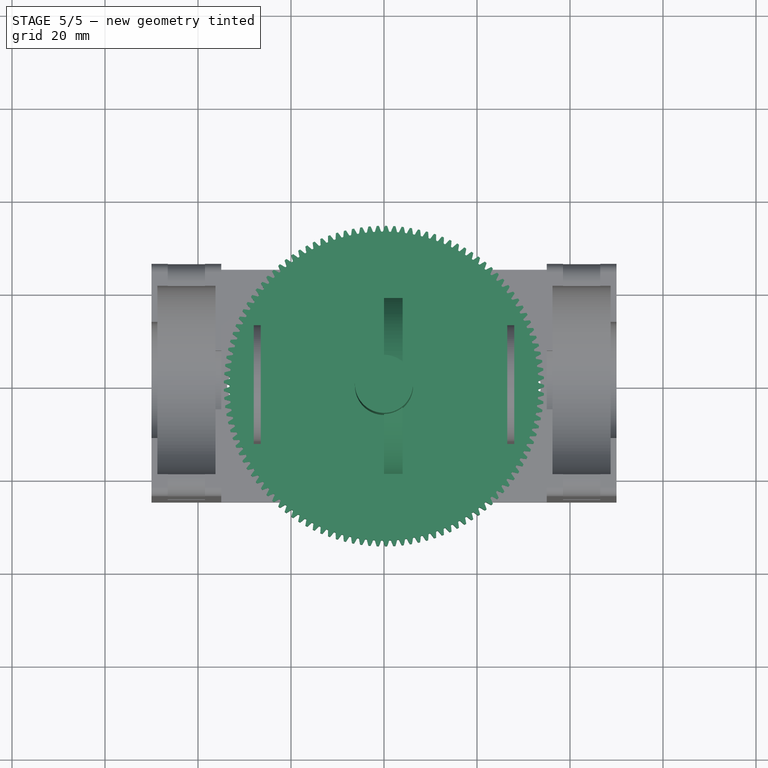
[diagram: stage 5 of 5 — top view after this stage's code; geometry added in this stage tinted green]
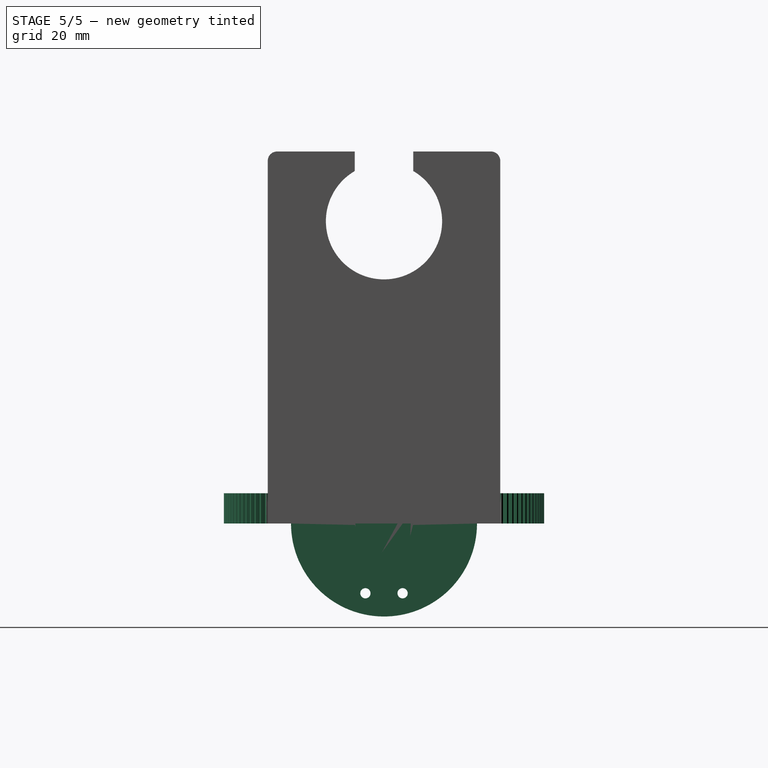
[diagram: stage 5 of 5 — right view after this stage's code; geometry added in this stage tinted green]
FEATURE [Part::Part2DObjectPython] InvoluteGear  # Draft 2D object (typed FeaturePython)
  ExternalGear = true
  HighPrecision = true
  Modules = 0.56
  NumberOfTeeth = 121
  PressureAngle = 20
FEATURE [PartDesign::Pad] Pad005
  Direction = (0,0,1)
  Length = 6.5
  Length2 = 10
  Profile = -> InvoluteGear
  ReferenceAxis = -> InvoluteGear [N_Axis]
  Type = 0
FEATURE [Sketcher::SketchObject] Sketch021
  FullyConstrained = true
  MapMode = 5
  Placement = pos=(0,0,0) rot=(1,0,0;3.14159rad)
  Support = -> [Pad005]
  sketch-geometry (9):
    g0: LineSegment StartX=-15 StartY=4 StartZ=0 EndX=-15 EndY=-4 EndZ=0
    g1: LineSegment StartX=-15 StartY=-4 StartZ=0 EndX=15 EndY=-4 EndZ=0
    g2: LineSegment StartX=15 StartY=-4 StartZ=0 EndX=15 EndY=4 EndZ=0
    g3: LineSegment StartX=15 StartY=4 StartZ=0 EndX=-15 EndY=4 EndZ=0
    g4: GeomPoint X=0 Y=0 Z=0
    g5: Circle CenterX=-15 CenterY=4 CenterZ=0 NormalX=0 NormalY=0 NormalZ=1 AngleXU=0 Radius=1.1
    g6: Circle CenterX=15 CenterY=4 CenterZ=0 NormalX=0 NormalY=0 NormalZ=1 AngleXU=0 Radius=1.1
    g7: Circle CenterX=15 CenterY=-4 CenterZ=0 NormalX=0 NormalY=0 NormalZ=1 AngleXU=0 Radius=1.1
    g8: Circle CenterX=-15 CenterY=-4 CenterZ=0 NormalX=0 NormalY=0 NormalZ=1 AngleXU=0 Radius=1.1
  constraints (20):
    c: Coincident(g0,g1)
    c: Coincident(g1,g2)
    c: Coincident(g2,g3)
    c: Coincident(g3,g0)
    c: Horizontal(g1)
    c: Horizontal(g3)
    c: Vertical(g0)
    c: Vertical(g2)
    c: Symmetric(g1,g0,g4)
    c: Coincident(g4,g-1)
    c: DistanceX(g3,g3) = 30
    c: Coincident(g5,g0)
    c: Coincident(g6,g2)
    c: Coincident(g7,g1)
    c: Coincident(g8,g0)
    c: Equal(g5,g6)
    c: Equal(g6,g7)
    c: Equal(g7,g8)
    c: Diameter(g5) = 2.2
    c: DistanceY(g2,g2) = 8
FEATURE [PartDesign::Pocket] Pocket006
  BaseFeature = -> Pad005
  Direction = (0,0,1)
  Length = 6
  Length2 = 5
  Profile = -> Sketch021
  ReferenceAxis = -> Sketch021 [N_Axis]
  Type = 0
FEATURE [Sketcher::SketchObject] Sketch023
  FullyConstrained = true
  MapMode = 5
  Placement = pos=(0,0,0) rot=(0.57735,0.57735,0.57735;2.0944rad)
  Support = -> [YZ_Plane003]
  sketch-geometry (1):
    g0: Circle CenterX=0 CenterY=0 CenterZ=0 NormalX=0 NormalY=0 NormalZ=1 AngleXU=0 Radius=20
  constraints (2):
    c: Coincident(g0,g-1)
    c: Diameter(g0) = 40
FEATURE [PartDesign::Pad] Pad008
  Direction = (1,-2e-16,3e-16)
  Length = 4
  Length2 = 10
  Placement = pos=(0,0,0) rot=(0.57735,0.57735,0.57735;2.0944rad)
  Profile = -> Sketch023
  ReferenceAxis = -> Sketch023 [N_Axis]
  Type = 0
FEATURE [Sketcher::SketchObject] Sketch024
  FullyConstrained = true
  MapMode = 5
  Placement = pos=(4,-9e-16,9e-16) rot=(0.57735,0.57735,0.57735;2.0944rad)
  Support = -> [Pad008]
  sketch-geometry (9):
    g0: LineSegment StartX=-4 StartY=15 StartZ=0 EndX=-4 EndY=-15 EndZ=0
    g1: LineSegment StartX=-4 StartY=-15 StartZ=0 EndX=4 EndY=-15 EndZ=0
    g2: LineSegment StartX=4 StartY=-15 StartZ=0 EndX=4 EndY=15 EndZ=0
    g3: LineSegment StartX=4 StartY=15 StartZ=0 EndX=-4 EndY=15 EndZ=0
    g4: GeomPoint X=0 Y=1e-16 Z=0
    g5: Circle CenterX=-4 CenterY=15 CenterZ=0 NormalX=0 NormalY=0 NormalZ=1 AngleXU=0 Radius=1.1
    g6: Circle CenterX=4 CenterY=15 CenterZ=0 NormalX=0 NormalY=0 NormalZ=1 AngleXU=0 Radius=1.1
    g7: Circle CenterX=-4 CenterY=-15 CenterZ=0 NormalX=0 NormalY=0 NormalZ=1 AngleXU=0 Radius=1.1
    g8: Circle CenterX=4 CenterY=-15 CenterZ=0 NormalX=0 NormalY=0 NormalZ=1 AngleXU=0 Radius=1.1
  constraints (20):
    c: Coincident(g0,g1)
    c: Coincident(g1,g2)
    c: Coincident(g2,g3)
    c: Coincident(g3,g0)
    c: Horizontal(g1)
    c: Horizontal(g3)
    c: Vertical(g0)
    c: Vertical(g2)
    c: Symmetric(g1,g0,g4)
    c: Coincident(g4,g-1)
    c: DistanceX(g3,g3) = 8
    c: Coincident(g5,g0)
    c: Coincident(g6,g2)
    c: Coincident(g7,g0)
    c: Coincident(g8,g1)
    c: Equal(g5,g6)
    c: Equal(g6,g7)
    c: Equal(g7,g8)
    c: Diameter(g5) = 2.2
    c: DistanceY(g2,g2) = 30
FEATURE [PartDesign::Pocket] Pocket008
  BaseFeature = -> Pad008
  Direction = (-1,4e-16,-4e-16)
  Length = 5
  Length2 = 5
  Placement = pos=(0,0,0) rot=(0.57735,0.57735,0.57735;2.0944rad)
  Profile = -> Sketch024
  ReferenceAxis = -> Sketch024 [N_Axis]
  Type = 0
FEATURE [Sketcher::SketchObject] Sketch025
  FullyConstrained = true
  MapMode = 5
  Placement = pos=(4,-9e-16,9e-16) rot=(0.57735,0.57735,0.57735;2.0944rad)
  Support = -> [Pocket008]
  sketch-geometry (1):
    g0: Circle CenterX=0 CenterY=0 CenterZ=0 NormalX=0 NormalY=0 NormalZ=1 AngleXU=0 Radius=6.25
  constraints (2):
    c: Coincident(g0,g-1)
    c: Diameter(g0) = 12.5
FEATURE [PartDesign::Pad] Pad009
  BaseFeature = -> Pocket008
  Direction = (1,-9e-16,6e-16)
  Length = 28
  Length2 = 10
  Placement = pos=(0,0,0) rot=(0.57735,0.57735,0.57735;2.0944rad)
  Profile = -> Sketch025
  ReferenceAxis = -> Sketch025 [N_Axis]
  Type = 0
FEATURE [PartDesign::Body] Body003  label="Body003-coupler"
  Group = -> [Sketch023,Pad008,Sketch024,Pocket008,Sketch025,Pad009]
  Origin = -> Origin003
  Placement = pos=(28,0,65) rot=(0,0,1;0rad)
  Tip = -> Pad009
FEATURE [PartDesign::Pad] Pad010
  BaseFeature = -> Pocket006
  Direction = (0,0,1)
  Length = 26
  Length2 = 10
  Profile = -> Sketch020
  ReferenceAxis = -> Sketch020 [N_Axis]
  Type = 0
FEATURE [Part::Part2DObjectPython] InvoluteGear001  # Draft 2D object (typed FeaturePython)
  ExternalGear = true
  HighPrecision = true
  Modules = 0.56
  NumberOfTeeth = 18
  PressureAngle = 20
FEATURE [PartDesign::Pad] Pad011
  Direction = (0,0,1)
  Length = 7
  Length2 = 10
  Profile = -> InvoluteGear001
  ReferenceAxis = -> InvoluteGear001 [N_Axis]
  Type = 0
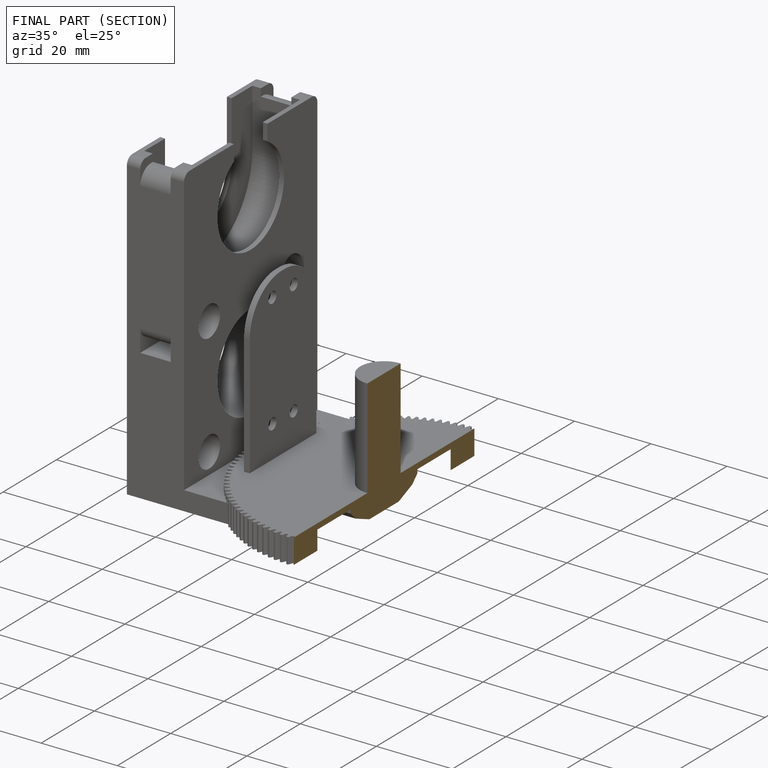
[diagram: finished part — half-section view (interior)]
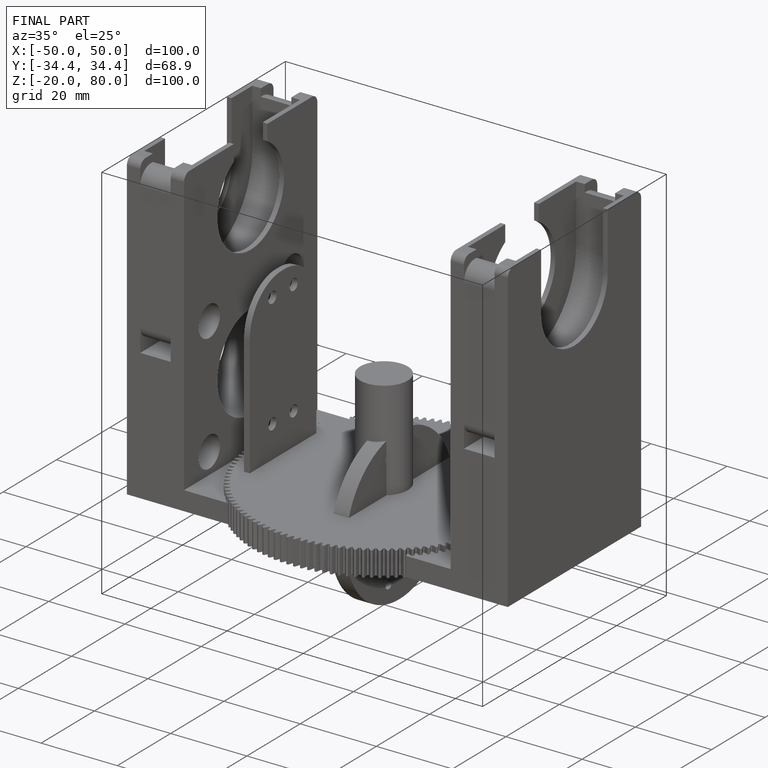
[diagram: finished part — iso view with bounding-box wireframe]
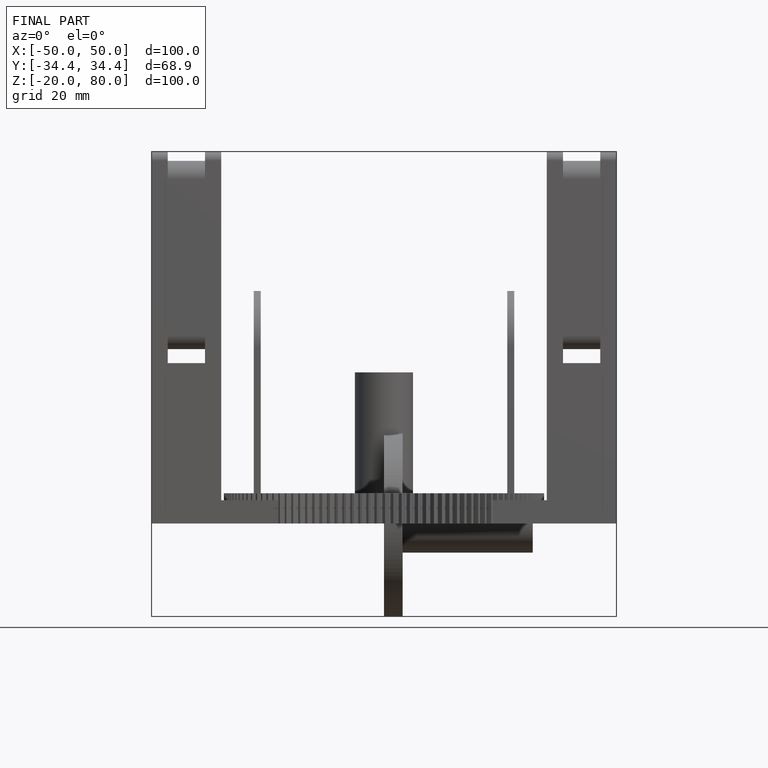
[diagram: finished part — front view with bounding-box wireframe]
